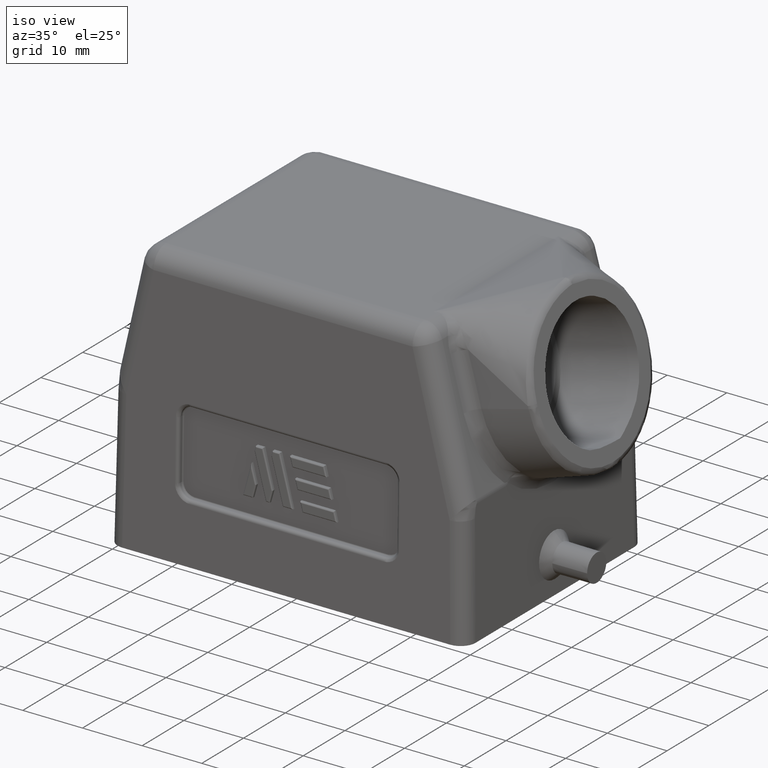
[diagram: clean part render]
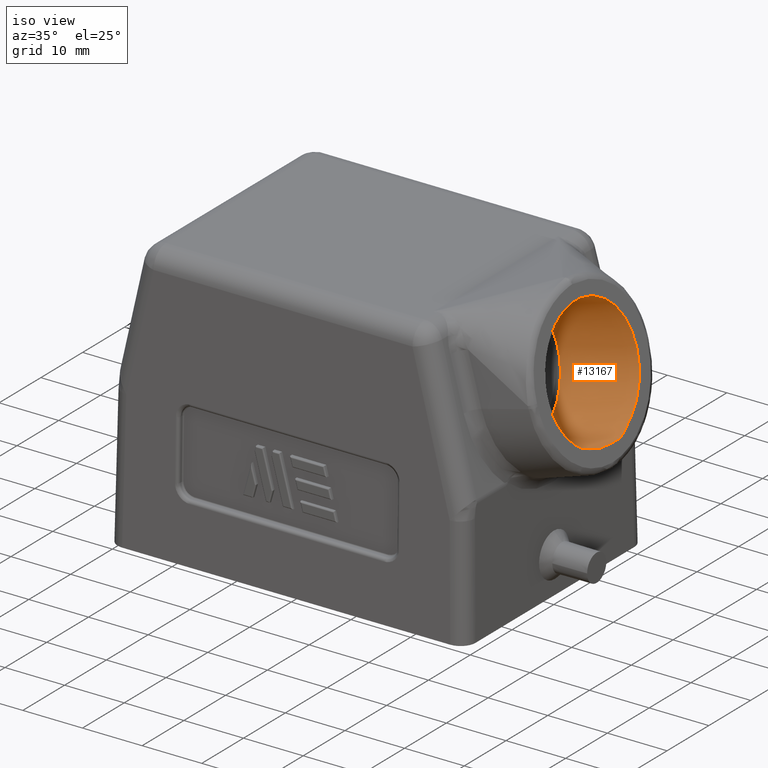
[diagram: same view with one face highlighted and labeled with its STEP entity id]
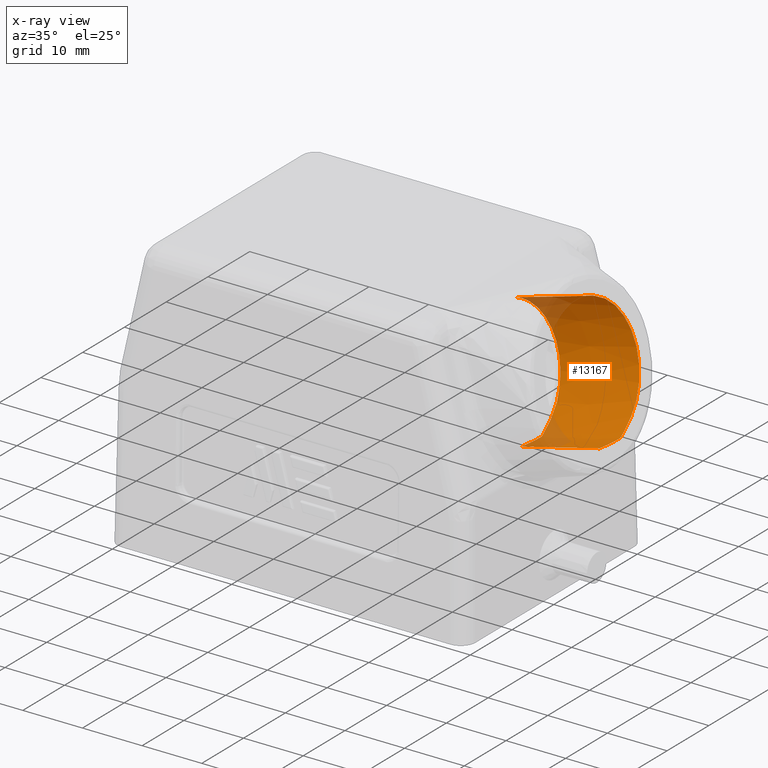
[diagram: x-ray of the same camera — body ghosted, the highlighted face saturated]
A machine part, iso view. The second image highlights one B-rep face of the part: STEP entity #13167.
The next image is the same camera in x-ray: the body ghosted, the highlighted face saturated — about 11% of this face is hidden behind the body in this view.
In plain terms, the highlighted face is a freeform B-spline surface patch.
Its self-contained STEP definition (entity closure, byte-faithful):
#23 = CARTESIAN_POINT ( 'NONE',  ( 3.069188806648929013, -0.4260216941653976463, 1.626993865541724649 ) ) ;
#154 = CARTESIAN_POINT ( 'NONE',  ( 3.154995379272409473, -0.3801080216454740257, 1.304296684583232224 ) ) ;
#160 = CARTESIAN_POINT ( 'NONE',  ( 2.721383223532737539, -0.08177578199091442568, 0.9988978497946950919 ) ) ;
#182 = CARTESIAN_POINT ( 'NONE',  ( 2.206914418224208418, -0.02670189150750266679, 0.8653764002859588578 ) ) ;
#218 = CARTESIAN_POINT ( 'NONE',  ( 2.988372787873330605, 0.1115322232773933303, 1.930922814554192790 ) ) ;
#224 = CARTESIAN_POINT ( 'NONE',  ( 2.680728904000512003, 0.3349069878689770463, 1.150544586399793401 ) ) ;
#295 = CARTESIAN_POINT ( 'NONE',  ( 2.641808463523434458, 0.4053692538041874793, 1.295723692912771119 ) ) ;
#413 = CARTESIAN_POINT ( 'NONE',  ( 3.195528185950240463, 0.2223776488601177381, 1.151862878508630006 ) ) ;
#501 = CARTESIAN_POINT ( 'NONE',  ( 2.010522969744448218, 0.2011048982685580411, 1.597946090340546910 ) ) ;
#569 = CARTESIAN_POINT ( 'NONE',  ( 2.021544446430628028, 0.2620368465353407061, 1.556834321867744952 ) ) ;
#706 = B_SPLINE_CURVE_WITH_KNOTS ( 'NONE', 1,
 ( #10093, #3936 ),
 .UNSPECIFIED., .F., .F.,
 ( 2, 2 ),
 ( 0.3694610509795143161, 0.6946228315323798030 ),
 .UNSPECIFIED. ) ;
#951 = CARTESIAN_POINT ( 'NONE',  ( 1.427094186093177397, -0.2074851061586012180, 1.441922698455756047 ) ) ;
#983 = CARTESIAN_POINT ( 'NONE',  ( 2.208241943241038285, 0.1039099140736383237, 0.8604245319757704014 ) ) ;
#1024 = CARTESIAN_POINT ( 'NONE',  ( 2.542852759886646385, 0.3066140962306745377, 1.664843375584722063 ) ) ;
#1083 = CARTESIAN_POINT ( 'NONE',  ( 2.533487053307770687, 0.2696073616970827147, 1.699778872108327565 ) ) ;
#1143 = CARTESIAN_POINT ( 'NONE',  ( 1.620376525684334768, 0.1040629529007019854, 0.7150358853680669480 ) ) ;
#1210 = CARTESIAN_POINT ( 'NONE',  ( 3.000171468634783345, -0.2223776488600216483, 1.886550910347271737 ) ) ;
#1218 = CARTESIAN_POINT ( 'NONE',  ( 2.558584718505624966, 0.3535865281556143103, 1.606160799848009857 ) ) ;
#1283 = CARTESIAN_POINT ( 'NONE',  ( 2.654588248665137762, 0.3905441467493663832, 1.248053169004058160 ) ) ;
#1354 = CARTESIAN_POINT ( 'NONE',  ( 2.564319145925310739, 0.3665132651790715124, 1.584770521656178932 ) ) ;
#1373 = CARTESIAN_POINT ( 'NONE',  ( 2.188884802732609547, 0.2370752219021975971, 0.9326295823095367421 ) ) ;
#1375 = VERTEX_POINT ( 'NONE', #3047 ) ;
#1441 = CARTESIAN_POINT ( 'NONE',  ( 2.030312086209062006, 0.2987345926721208245, 1.524129704611154601 ) ) ;
#1569 = CARTESIAN_POINT ( 'NONE',  ( 2.054015158940046604, 0.3621819381327369691, 1.435713672353678083 ) ) ;
#1964 = EDGE_CURVE ( 'NONE', #6380, #4965, #2804, .T. ) ;
#2012 = CARTESIAN_POINT ( 'NONE',  ( 3.040704275311806981, 0.3801080216454786886, 1.734117104272279386 ) ) ;
#2045 = CARTESIAN_POINT ( 'NONE',  ( 2.205524310300192692, 0.1299912366956630927, 0.8705617122683368958 ) ) ;
#2082 = CARTESIAN_POINT ( 'NONE',  ( 1.416085659199393998, -0.1040629524376236181, 1.483323030463472358 ) ) ;
#2142 = CARTESIAN_POINT ( 'NONE',  ( 1.609367998792067045, 0.2074851061586023560, 0.7564362173757833707 ) ) ;
#2149 = CARTESIAN_POINT ( 'NONE',  ( 2.645062657414244178, 0.4020530911825013765, 1.283585059441595622 ) ) ;
#2219 = CARTESIAN_POINT ( 'NONE',  ( 2.622132859690429640, 0.4174729636146221057, 1.369116659425083871 ) ) ;
#2288 = CARTESIAN_POINT ( 'NONE',  ( 2.724294947580238269, 0.1089893773223212792, 0.9880366804336343511 ) ) ;
#2309 = CARTESIAN_POINT ( 'NONE',  ( 2.208239114457705821, 0.1022334681259936678, 0.8604350837637678717 ) ) ;
#2349 = CARTESIAN_POINT ( 'NONE',  ( 2.722292732153357431, -0.05623264885969635196, 0.9955052456183568488 ) ) ;
#2411 = CARTESIAN_POINT ( 'NONE',  ( 3.207326866711693203, 0.1115322237737098598, 1.107490974301897690 ) ) ;
#2419 = CARTESIAN_POINT ( 'NONE',  ( 2.615516411563779453, 0.4181352125472459491, 1.393797007734146831 ) ) ;
#2561 = CARTESIAN_POINT ( 'NONE',  ( 2.068718903696888045, 0.3869019469545075807, 1.380866489227622784 ) ) ;
#2794 = B_SPLINE_CURVE_WITH_KNOTS ( 'NONE', 3,
 ( #6333, #5251, #182, #7408, #12288, #4177, #8280, #2309, #983, #12411, #3043, #3229, #11407, #10147, #12353, #13227, #4050, #8149, #11216, #2045, #10666, #8547, #5453, #1373, #11743, #3631, #4575, #3504, #7539, #3567, #4376, #11609, #8484, #8611, #11540, #4641, #5381, #12817, #6401, #12614, #4445, #2561, #3437, #1569, #6667, #7734, #6535, #11811, #1441, #7674, #569, #5652, #3368, #501, #9739, #6467 ),
 .UNSPECIFIED., .F., .F.,
 ( 4, 2, 2, 2, 2, 2, 2, 2, 2, 2, 2, 2, 2, 2, 2, 2, 2, 2, 2, 2, 2, 2, 2, 2, 2, 2, 2, 4 ),
 ( 0.03488349577210854424, 0.03693140833234621889, 0.03897932089258390048, 0.03949129903264331914, 0.03961929356765817034, 0.03963529288453503108, 0.03965129220141188487, 0.03968329083516560635, 0.03974728810267304235, 0.04000327717270280026, 0.04102723345282183187, 0.04307514601305989510, 0.04512305857329795833, 0.04717097113353602156, 0.04819492741365505317, 0.04921888369377409173, 0.05126679625401215495, 0.05229075253413118657, 0.05331470881425021818, 0.05536262137448826753, 0.05741053393472632382, 0.05945844649496437317, 0.06048240277508339091, 0.06150635905520240865, 0.06355427161544044412, 0.06457822789555944798, 0.06560218417567847959, 0.06765009673591648731 ),
 .UNSPECIFIED. ) ;
#2804 = B_SPLINE_CURVE_WITH_KNOTS ( 'NONE', 1,
 ( #6422, #4330 ),
 .UNSPECIFIED., .F., .F.,
 ( 2, 2 ),
 ( 0.3704248646721599592, 0.6956085584289769530 ),
 .UNSPECIFIED. ) ;
#2905 = CARTESIAN_POINT ( 'NONE',  ( 2.721383223532737539, -0.08177578199091442568, 0.9988978497946950919 ) ) ;
#3013 = CARTESIAN_POINT ( 'NONE',  ( 1.544972707058854366, -0.3974912402588071103, 0.9986108955434173096 ) ) ;
#3043 = CARTESIAN_POINT ( 'NONE',  ( 2.208243754645684565, 0.1060055074323278945, 0.8604177751635443405 ) ) ;
#3047 = CARTESIAN_POINT ( 'NONE',  ( 2.516492381470751383, 0.1595406725918468716, 1.763171558381564585 ) ) ;
#3077 = FACE_OUTER_BOUND ( 'NONE', #8017, .T. ) ;
#3141 = CARTESIAN_POINT ( 'NONE',  ( 1.491489477825629795, -0.3974912402588071103, 1.199748020288315065 ) ) ;
#3148 = CARTESIAN_POINT ( 'NONE',  ( 2.724294441902360475, 0.1079825286478200697, 0.9880385666883070295 ) ) ;
#3209 = CARTESIAN_POINT ( 'NONE',  ( 2.635273810062451094, 0.4107944301116334684, 1.320098934796178902 ) ) ;
#3229 = CARTESIAN_POINT ( 'NONE',  ( 2.208244008563079674, 0.1064246272310282182, 0.8604168280134071312 ) ) ;
#3278 = CARTESIAN_POINT ( 'NONE',  ( 2.721329283391499931, 0.1343551326427797343, 0.9990990546478274448 ) ) ;
#3349 = CARTESIAN_POINT ( 'NONE',  ( 2.723992012035601373, 0.04658306362344118851, 0.9891666756536907634 ) ) ;
#3368 = CARTESIAN_POINT ( 'NONE',  ( 2.015722185332191163, 0.2323125478355846929, 1.578552232913847719 ) ) ;
#3412 = CARTESIAN_POINT ( 'NONE',  ( 2.724289889141170651, 0.1045593454638760328, 0.9880555491734350770 ) ) ;
#3418 = B_SPLINE_CURVE_WITH_KNOTS ( 'NONE', 3,
 ( #10251, #6994, #13144, #13208, #5981, #4964, #1083, #3963, #1024, #4288, #6514, #1218, #1354, #5296, #8530, #6447, #12396, #12597, #10452, #2419, #2219, #11587, #3209, #295, #2149, #1283, #6379, #11457, #7458, #9456, #224, #9321, #9386, #11319, #8394, #5360, #7253, #3278, #5230, #12458, #7388, #4353, #7520, #2288, #3148, #11388, #3412, #8464, #10584, #6314, #12532, #3349, #5500, #6245, #2349, #160 ),
 .UNSPECIFIED., .F., .F.,
 ( 4, 2, 2, 2, 2, 2, 2, 2, 2, 2, 2, 2, 2, 2, 2, 2, 2, 2, 2, 2, 2, 2, 1, 2, 1, 2, 2, 2, 4 ),
 ( 6.700895668129166210E-06, 0.0009943936259351978703, 0.001982086356202266558, 0.003957471816736396128, 0.004945164547003458311, 0.005932857277270518759, 0.007908242737804637920, 0.009883628198338755347, 0.01087132092860581406, 0.01185901365887287451, 0.01383439911940699193, 0.01482209184967405238, 0.01580978457994110936, 0.01778517004047522332, 0.01877286277074227683, 0.01976055550100932687, 0.02173594096154343736, 0.02371132642207755131, 0.02568671188261166180, 0.02667440461287871878, 0.02670527001069956594, 0.02672070270960998778, 0.02673613540852040962, 0.02679786620416209700, 0.02692132779544547869, 0.02716825097801223513, 0.02766209734314574800, 0.02963748280367979604, 0.03161286826421384755 ),
 .UNSPECIFIED. ) ;
#3437 = CARTESIAN_POINT ( 'NONE',  ( 2.062720987176993148, 0.3782564526370807423, 1.403239621459012820 ) ) ;
#3504 = CARTESIAN_POINT ( 'NONE',  ( 2.163772186263044350, 0.3326723041900654931, 1.026303425065808295 ) ) ;
#3567 = CARTESIAN_POINT ( 'NONE',  ( 2.155656105118205712, 0.3526919569186078296, 1.056577630458945594 ) ) ;
#3614 = CARTESIAN_POINT ( 'NONE',  ( 2.005061070367065934, 0.1559939892094283076, 1.618319797877057153 ) ) ;
#3631 = CARTESIAN_POINT ( 'NONE',  ( 2.176185980686983434, 0.2938093910312900015, 0.9799981016724427230 ) ) ;
#3936 = CARTESIAN_POINT ( 'NONE',  ( 2.516492381470751383, 0.1595406725918468716, 1.763171558381564585 ) ) ;
#3963 = CARTESIAN_POINT ( 'NONE',  ( 2.540411997334871330, 0.2976518255446751748, 1.673947787614336047 ) ) ;
#4050 = CARTESIAN_POINT ( 'NONE',  ( 2.207964432791969855, 0.1093596631017894477, 0.8614596877589519863 ) ) ;
#4177 = CARTESIAN_POINT ( 'NONE',  ( 2.208195484808024744, 0.08714625705054832028, 0.8605978289300713069 ) ) ;
#4281 = CARTESIAN_POINT ( 'NONE',  ( 1.544972707058161365, 0.3974912402588071103, 0.9986108955435590850 ) ) ;
#4288 = CARTESIAN_POINT ( 'NONE',  ( 2.547889838906135740, 0.3234236174026270949, 1.646054311984192164 ) ) ;
#4330 = CARTESIAN_POINT ( 'NONE',  ( 2.721383223532737539, -0.08177578199091442568, 0.9988978497946950919 ) ) ;
#4347 = CARTESIAN_POINT ( 'NONE',  ( 3.204377196520393767, -0.08347746815843366808, 1.118583950353393863 ) ) ;
#4353 = CARTESIAN_POINT ( 'NONE',  ( 2.724261491088470599, 0.1095682337743395102, 0.9881614781882916976 ) ) ;
#4376 = CARTESIAN_POINT ( 'NONE',  ( 2.152816314802126652, 0.3588013080795537380, 1.067170476164674975 ) ) ;
#4445 = CARTESIAN_POINT ( 'NONE',  ( 2.081103516380111262, 0.4000435795849481835, 1.334670018123484958 ) ) ;
#4575 = CARTESIAN_POINT ( 'NONE',  ( 2.171439363910491416, 0.3104356456219597438, 0.9977036973471994363 ) ) ;
#4641 = CARTESIAN_POINT ( 'NONE',  ( 2.119495039377686574, 0.4028088996830709867, 1.191463853492767511 ) ) ;
#4964 = CARTESIAN_POINT ( 'NONE',  ( 2.529396381780224079, 0.2494625020814826288, 1.715037693183515843 ) ) ;
#4965 = VERTEX_POINT ( 'NONE', #2905 ) ;
#5222 = CARTESIAN_POINT ( 'NONE',  ( 3.201427526329852391, -0.1669549363168675304, 1.129676926405078774 ) ) ;
#5230 = CARTESIAN_POINT ( 'NONE',  ( 2.722797072923647033, 0.1227372094768096333, 0.9936239785640491595 ) ) ;
#5251 = CARTESIAN_POINT ( 'NONE',  ( 2.206339647069714527, -0.05348646433833567637, 0.8675203832839913920 ) ) ;
#5290 = CARTESIAN_POINT ( 'NONE',  ( 2.988372787873330605, -0.1115322232773929140, 1.930922814554192790 ) ) ;
#5296 = CARTESIAN_POINT ( 'NONE',  ( 2.576486680427053422, 0.3884765427084652667, 1.539383784872731420 ) ) ;
#5360 = CARTESIAN_POINT ( 'NONE',  ( 2.713399292285513020, 0.1911019241690759818, 1.028679116160779339 ) ) ;
#5381 = CARTESIAN_POINT ( 'NONE',  ( 2.116280838592005775, 0.4046750290033968023, 1.203453306656669719 ) ) ;
#5393 = CARTESIAN_POINT ( 'NONE',  ( 2.205397086117768524, -0.07995785770660397695, 0.8710362776356554981 ) ) ;
#5453 = CARTESIAN_POINT ( 'NONE',  ( 2.196165839601065262, 0.1958001084672927605, 0.9054702178703574189 ) ) ;
#5500 = CARTESIAN_POINT ( 'NONE',  ( 2.723717527866480914, 0.02082347467310689815, 0.9901905429567445793 ) ) ;
#5652 = CARTESIAN_POINT ( 'NONE',  ( 2.017577947148106787, 0.2424229966399567837, 1.571629961761903838 ) ) ;
#5824 = VERTEX_POINT ( 'NONE', #3614 ) ;
#5981 = CARTESIAN_POINT ( 'NONE',  ( 2.523992258460677096, 0.2172295171779856648, 1.735195887320081454 ) ) ;
#6175 = CARTESIAN_POINT ( 'NONE',  ( 1.464912534294255941, 0.3546523676688815296, 1.299697295665334762 ) ) ;
#6245 = CARTESIAN_POINT ( 'NONE',  ( 2.722860751335166363, -0.03057774276154493973, 0.9933864484956514973 ) ) ;
#6307 = CARTESIAN_POINT ( 'NONE',  ( 1.571549650590189140, -0.3546523676688645987, 0.8986616201659921588 ) ) ;
#6314 = CARTESIAN_POINT ( 'NONE',  ( 2.724227702479238289, 0.08523036439971649891, 0.9882875147911384106 ) ) ;
#6333 = CARTESIAN_POINT ( 'NONE',  ( 2.205397086117768524, -0.07995785770660397695, 0.8710362776356554981 ) ) ;
#6379 = CARTESIAN_POINT ( 'NONE',  ( 2.660696337728825966, 0.3807558484786032760, 1.225269076586332773 ) ) ;
#6380 = VERTEX_POINT ( 'NONE', #5393 ) ;
#6401 = CARTESIAN_POINT ( 'NONE',  ( 2.100302879249759780, 0.4087172358003834383, 1.263053502152257535 ) ) ;
#6422 = CARTESIAN_POINT ( 'NONE',  ( 2.205397086117768524, -0.07995785770660397695, 0.8710362776356554981 ) ) ;
#6447 = CARTESIAN_POINT ( 'NONE',  ( 2.592355461571788755, 0.4069324272961306055, 1.480190840502038307 ) ) ;
#6467 = CARTESIAN_POINT ( 'NONE',  ( 2.005061070367065934, 0.1559939892094283076, 1.618319797877057153 ) ) ;
#6514 = CARTESIAN_POINT ( 'NONE',  ( 2.550498593225094535, 0.3313260686249031028, 1.636323265354300727 ) ) ;
#6535 = CARTESIAN_POINT ( 'NONE',  ( 2.042910292749919865, 0.3367192506283476772, 1.477136496239194186 ) ) ;
#6667 = CARTESIAN_POINT ( 'NONE',  ( 2.051148310809555841, 0.3562686095569333466, 1.446407447783534472 ) ) ;
#6994 = CARTESIAN_POINT ( 'NONE',  ( 2.517777329013244358, 0.1715211297689774317, 1.758378510465137934 ) ) ;
#7116 = CARTESIAN_POINT ( 'NONE',  ( 3.195528185949527256, -0.2223776488600256174, 1.151862878508637777 ) ) ;
#7185 = CARTESIAN_POINT ( 'NONE',  ( 3.000171468634783345, 0.2223776488600224532, 1.886550910347649879 ) ) ;
#7253 = CARTESIAN_POINT ( 'NONE',  ( 2.716745939854391612, 0.1688142526743140470, 1.016195616541864633 ) ) ;
#7379 = CARTESIAN_POINT ( 'NONE',  ( 3.207326866710935587, 2.048885995248197414E-16, 1.107490974301708730 ) ) ;
#7388 = CARTESIAN_POINT ( 'NONE',  ( 2.724200445341163235, 0.1101260367319565475, 0.9883891880225614823 ) ) ;
#7408 = CARTESIAN_POINT ( 'NONE',  ( 2.207763983143050446, 0.02682377051455668571, 0.8622073951480306864 ) ) ;
#7448 = CARTESIAN_POINT ( 'NONE',  ( 3.154995379271701150, 0.3801080216453846528, 1.304296684583244215 ) ) ;
#7458 = CARTESIAN_POINT ( 'NONE',  ( 2.672373677766749722, 0.3564744279949367822, 1.181710839002858116 ) ) ;
#7520 = CARTESIAN_POINT ( 'NONE',  ( 2.724295025823369354, 0.1093920601289405659, 0.9880363885749693376 ) ) ;
#7539 = CARTESIAN_POINT ( 'NONE',  ( 2.161126628935183813, 0.3396408719253863895, 1.036171752463433515 ) ) ;
#7674 = CARTESIAN_POINT ( 'NONE',  ( 2.023666819081095802, 0.2715827531811063622, 1.548917552136833464 ) ) ;
#7734 = CARTESIAN_POINT ( 'NONE',  ( 2.045594588740161424, 0.3435302564385736557, 1.467123667794740127 ) ) ;
#7914 = EDGE_CURVE ( 'NONE', #1375, #4965, #3418, .T. ) ;
#8017 = EDGE_LOOP ( 'NONE', ( #13012, #10932, #12918, #11674 ) ) ;
#8126 = CARTESIAN_POINT ( 'NONE',  ( 1.617624393961849316, -0.07788701476481781072, 0.7253859683701436856 ) ) ;
#8149 = CARTESIAN_POINT ( 'NONE',  ( 2.207558679926802991, 0.1129430307720739463, 0.8629732070744554617 ) ) ;
#8280 = CARTESIAN_POINT ( 'NONE',  ( 2.208221395521758890, 0.09385135876266466337, 0.8605011780642868313 ) ) ;
#8319 = CARTESIAN_POINT ( 'NONE',  ( 1.464912534294255941, -0.3546523676688335125, 1.299697295666094599 ) ) ;
#8394 = CARTESIAN_POINT ( 'NONE',  ( 2.706063286839642590, 0.2341646348709355285, 1.056043521674972618 ) ) ;
#8464 = CARTESIAN_POINT ( 'NONE',  ( 2.724280325613423148, 0.09972664986456039604, 0.9880912225727284115 ) ) ;
#8484 = CARTESIAN_POINT ( 'NONE',  ( 2.138181430846116449, 0.3845588690805877286, 1.121760798129449288 ) ) ;
#8530 = CARTESIAN_POINT ( 'NONE',  ( 2.582737670629493554, 0.3971845049147202378, 1.516066649678797562 ) ) ;
#8547 = CARTESIAN_POINT ( 'NONE',  ( 2.199501698105200909, 0.1742885066485868051, 0.8930269630883521659 ) ) ;
#8611 = CARTESIAN_POINT ( 'NONE',  ( 2.128955932892702574, 0.3950088292613445629, 1.156173295357039388 ) ) ;
#9187 = CARTESIAN_POINT ( 'NONE',  ( 3.126510847935334958, -0.4260216941653976463, 1.411419923314177316 ) ) ;
#9249 = CARTESIAN_POINT ( 'NONE',  ( 1.427094186093177397, 0.2074851061585543666, 1.441922698456511887 ) ) ;
#9314 = CARTESIAN_POINT ( 'NONE',  ( 1.491489477826323018, 0.3974912402588071103, 1.199748020288169403 ) ) ;
#9321 = CARTESIAN_POINT ( 'NONE',  ( 2.688559872448366139, 0.3111088206649895160, 1.121333894319870517 ) ) ;
#9381 = CARTESIAN_POINT ( 'NONE',  ( 1.416085659199393998, 0.1040629524376240206, 1.483323030463472358 ) ) ;
#9386 = CARTESIAN_POINT ( 'NONE',  ( 2.693329019140442426, 0.2934651201296217260, 1.103544258665754008 ) ) ;
#9456 = CARTESIAN_POINT ( 'NONE',  ( 2.677995848825193370, 0.3424433734867461943, 1.160739293950369566 ) ) ;
#9519 = CARTESIAN_POINT ( 'NONE',  ( 3.126510847934642179, 0.4260216941653976463, 1.411419923314303215 ) ) ;
#9739 = CARTESIAN_POINT ( 'NONE',  ( 2.007543646906339241, 0.1791407721737072190, 1.609059413374621217 ) ) ;
#10093 = CARTESIAN_POINT ( 'NONE',  ( 2.005061070367065934, 0.1559939892094283076, 1.618319797877057153 ) ) ;
#10115 = CARTESIAN_POINT ( 'NONE',  ( 1.620376525685094604, 2.048885995248197414E-16, 0.7150358853682559079 ) ) ;
#10147 = CARTESIAN_POINT ( 'NONE',  ( 2.208203985217276788, 0.1072029605411063125, 0.8605661211229370666 ) ) ;
#10251 = CARTESIAN_POINT ( 'NONE',  ( 2.516492381470751383, 0.1595406725918468716, 1.763171558381564585 ) ) ;
#10310 = CARTESIAN_POINT ( 'NONE',  ( 1.571549650589472602, 0.3546523676688346782, 0.8986616201658269576 ) ) ;
#10378 = CARTESIAN_POINT ( 'NONE',  ( 1.620376525684334768, 0.1040629529007019854, 0.7150358853680669480 ) ) ;
#10452 = CARTESIAN_POINT ( 'NONE',  ( 2.605527660758537145, 0.4153972693826498697, 1.431056553086418992 ) ) ;
#10511 = CARTESIAN_POINT ( 'NONE',  ( 3.207326866711693203, 0.1115322237737098598, 1.107490974301897690 ) ) ;
#10584 = CARTESIAN_POINT ( 'NONE',  ( 2.724264861578965302, 0.09489431288528744901, 0.9881489057509739160 ) ) ;
#10666 = CARTESIAN_POINT ( 'NONE',  ( 2.204070055554666396, 0.1411821355492638430, 0.8759863015589461899 ) ) ;
#10707 = CARTESIAN_POINT ( 'NONE',  ( 3.069188806649622236, 0.4260216941653976463, 1.626993865541598527 ) ) ;
#10932 = ORIENTED_EDGE ( 'NONE', *, *, #11742, .F. ) ;
#11186 = CARTESIAN_POINT ( 'NONE',  ( 1.617624393961849316, -0.07788701476481781072, 0.7253859683701436856 ) ) ;
#11216 = CARTESIAN_POINT ( 'NONE',  ( 2.207224492234085123, 0.1157936548086533624, 0.8642197775151216899 ) ) ;
#11319 = CARTESIAN_POINT ( 'NONE',  ( 2.702056229860251513, 0.2549832211977725582, 1.070990447888648278 ) ) ;
#11382 = CARTESIAN_POINT ( 'NONE',  ( 3.204377196520393767, -0.08347746815843366808, 1.118583950353393863 ) ) ;
#11388 = CARTESIAN_POINT ( 'NONE',  ( 2.724293292485584939, 0.1069757069551854900, 0.9880428541860414304 ) ) ;
#11407 = CARTESIAN_POINT ( 'NONE',  ( 2.208262269260706123, 0.1066612596360748816, 0.8603487128602024248 ) ) ;
#11457 = CARTESIAN_POINT ( 'NONE',  ( 2.669499569901076175, 0.3629396804944586830, 1.192431694338659920 ) ) ;
#11540 = CARTESIAN_POINT ( 'NONE',  ( 2.125834430528193320, 0.3979705324393645327, 1.167816969444555930 ) ) ;
#11560 = B_SPLINE_SURFACE_WITH_KNOTS ( 'NONE', 1, 3, ( 
 ( #8126, #12453, #12194, #6307, #3013, #3141, #8319, #951, #2082, #9381, #9249, #6175, #9314, #4281, #10310, #2142, #1143, #10378, #10115, #11186 ),
 ( #11382, #5222, #7116, #154, #9187, #23, #12390, #1210, #5290, #218, #7185, #2012, #10707, #9519, #7448, #413, #2411, #10511, #7379, #4347 ) ),
 .UNSPECIFIED., .F., .T., .F.,
 ( 2, 2 ),
 ( 4, 2, 2, 2, 2, 2, 2, 2, 2, 4 ),
 ( 0.000000000000000000, 1.000000000000000000 ),
 ( 0.000000000000000000, 0.1250000000000000000, 0.2500000000000000000, 0.3750000000000000000, 0.5000000000000000000, 0.6249999999999990008, 0.7499999999999990008, 0.8750000000000000000, 1.000000000000000000, 1.125000000000000000 ),
 .UNSPECIFIED. ) ;
#11587 = CARTESIAN_POINT ( 'NONE',  ( 2.631996219188022845, 0.4129093341532229511, 1.332324842541097398 ) ) ;
#11609 = CARTESIAN_POINT ( 'NONE',  ( 2.144147902815076723, 0.3755224841962624405, 1.099504958810302746 ) ) ;
#11674 = ORIENTED_EDGE ( 'NONE', *, *, #7914, .F. ) ;
#11742 = EDGE_CURVE ( 'NONE', #6380, #5824, #2794, .T. ) ;
#11743 = CARTESIAN_POINT ( 'NONE',  ( 2.184934966519789690, 0.2568812554596321962, 0.9473630664433454474 ) ) ;
#11811 = CARTESIAN_POINT ( 'NONE',  ( 2.035132547903166333, 0.3149729266346289469, 1.506148656268646135 ) ) ;
#12156 = EDGE_CURVE ( 'NONE', #5824, #1375, #706, .T. ) ;
#12194 = CARTESIAN_POINT ( 'NONE',  ( 1.609367998791354282, -0.2074851061585700485, 0.7564362173756181695 ) ) ;
#12288 = CARTESIAN_POINT ( 'NONE',  ( 2.208025522644573080, 0.05362390702501700773, 0.8612318134052855401 ) ) ;
#12353 = CARTESIAN_POINT ( 'NONE',  ( 2.208164307978635499, 0.1075628646825945722, 0.8607141232006229048 ) ) ;
#12390 = CARTESIAN_POINT ( 'NONE',  ( 3.040704275311806981, -0.3801080216454779670, 1.734117104272661303 ) ) ;
#12396 = CARTESIAN_POINT ( 'NONE',  ( 2.595602071371404307, 0.4096249597583101476, 1.468080496833592319 ) ) ;
#12411 = CARTESIAN_POINT ( 'NONE',  ( 2.208243594938575249, 0.1057959478735554515, 0.8604183708951244069 ) ) ;
#12453 = CARTESIAN_POINT ( 'NONE',  ( 1.614872262238604250, -0.1557740295296358157, 0.7357360513720314632 ) ) ;
#12458 = CARTESIAN_POINT ( 'NONE',  ( 2.724159379268811687, 0.1104972984093738064, 0.9885423706592197934 ) ) ;
#12532 = CARTESIAN_POINT ( 'NONE',  ( 2.724194597224084635, 0.07878854501344796646, 0.9884110023803126532 ) ) ;
#12597 = CARTESIAN_POINT ( 'NONE',  ( 2.602179556945019900, 0.4138566868972325397, 1.443545484717231320 ) ) ;
#12614 = CARTESIAN_POINT ( 'NONE',  ( 2.087536283018758265, 0.4045166144723357782, 1.310674829437089350 ) ) ;
#12817 = CARTESIAN_POINT ( 'NONE',  ( 2.106691102015499695, 0.4084961216374156656, 1.239224468822521796 ) ) ;
#12918 = ORIENTED_EDGE ( 'NONE', *, *, #1964, .T. ) ;
#13012 = ORIENTED_EDGE ( 'NONE', *, *, #12156, .F. ) ;
#13144 = CARTESIAN_POINT ( 'NONE',  ( 2.519206093770300914, 0.1832946007337760697, 1.753049002671692502 ) ) ;
#13167 = ADVANCED_FACE ( 'NONE', ( #3077 ), #11560, .F. ) ;
#13208 = CARTESIAN_POINT ( 'NONE',  ( 2.522313918667501209, 0.2061463368309231492, 1.741456347597808652 ) ) ;
#13227 = CARTESIAN_POINT ( 'NONE',  ( 2.208044971617349805, 0.1086419430507699346, 0.8611592658067612760 ) ) ;